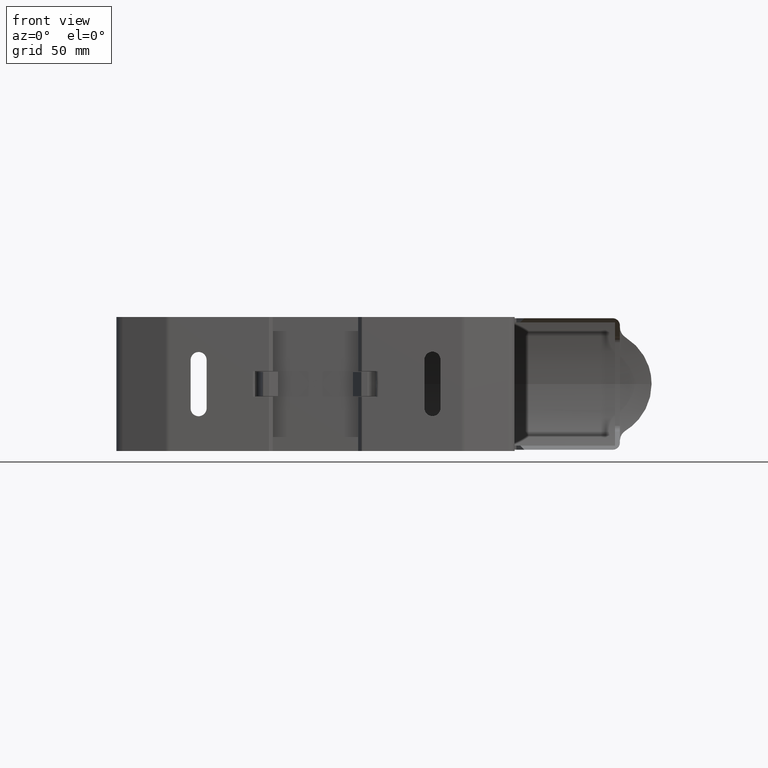
[diagram: clean part render]
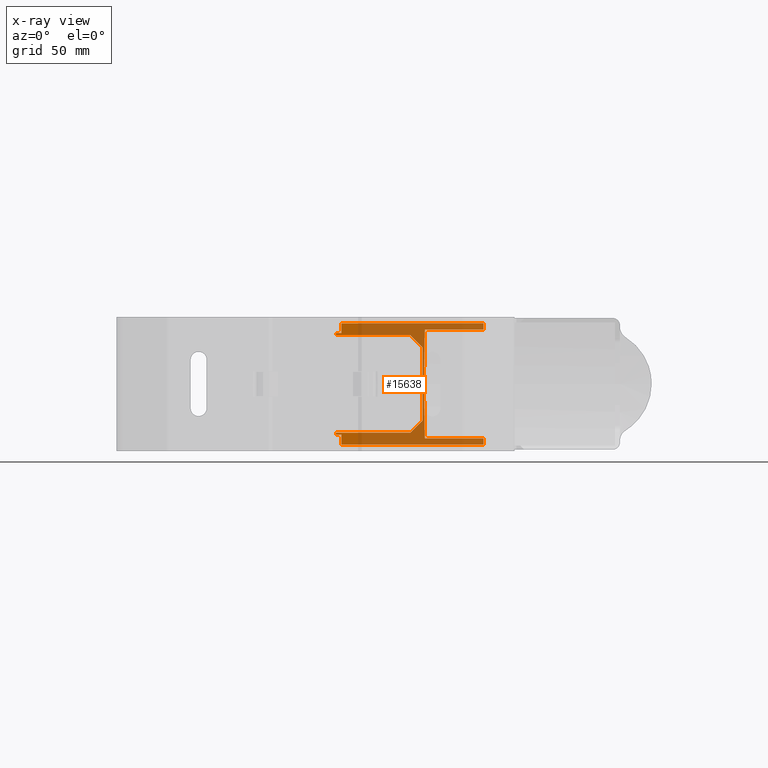
[diagram: x-ray — body ghosted, one internal face saturated and labeled with its STEP entity id]
A machine part, front view, then the same camera in x-ray: the body is ghosted and one INTERNAL B-rep face — a face not visible from any outside direction — is saturated and labeled: STEP entity #15638.
In plain terms, the highlighted planar face has unit normal (0, 1, -0).
Its self-contained STEP definition (entity closure, byte-faithful):
#325 = DIRECTION ( 'NONE',  ( -1.000000000000000000, -0.0000000000000000000, -6.982962677686269900E-015 ) ) ;
#334 = LINE ( 'NONE', #384, #18917 ) ;
#384 = CARTESIAN_POINT ( 'NONE',  ( 325.5178421804040500, -232.3717408838470500, 26.39999999999704600 ) ) ;
#1052 = DIRECTION ( 'NONE',  ( 1.000000000000000000, -6.346126799884186200E-052, 4.867835802386790800E-030 ) ) ;
#1060 = LINE ( 'NONE', #1065, #18996 ) ;
#1065 = CARTESIAN_POINT ( 'NONE',  ( 325.5178421804045000, -232.3717400195588400, -18.40000000000411600 ) ) ;
#2367 = VERTEX_POINT ( 'NONE', #39016 ) ;
#2411 = VERTEX_POINT ( 'NONE', #39104 ) ;
#2419 = VERTEX_POINT ( 'NONE', #39117 ) ;
#2428 = VERTEX_POINT ( 'NONE', #39124 ) ;
#2457 = VERTEX_POINT ( 'NONE', #39157 ) ;
#2459 = VERTEX_POINT ( 'NONE', #39148 ) ;
#2468 = VERTEX_POINT ( 'NONE', #39177 ) ;
#2502 = VERTEX_POINT ( 'NONE', #39188 ) ;
#2506 = VERTEX_POINT ( 'NONE', #39145 ) ;
#2519 = VERTEX_POINT ( 'NONE', #39221 ) ;
#2652 = VERTEX_POINT ( 'NONE', #39374 ) ;
#2657 = VERTEX_POINT ( 'NONE', #39377 ) ;
#3765 = VECTOR ( 'NONE', #27741, 1000.000000000000000 ) ;
#3769 = VECTOR ( 'NONE', #27762, 1000.000000000000000 ) ;
#3796 = VECTOR ( 'NONE', #27787, 1000.000000000000000 ) ;
#3797 = VECTOR ( 'NONE', #27877, 1000.000000000000000 ) ;
#3799 = VECTOR ( 'NONE', #27922, 1000.000000000000100 ) ;
#3812 = VECTOR ( 'NONE', #27897, 1000.000000000000000 ) ;
#3822 = VECTOR ( 'NONE', #27901, 1000.000000000000100 ) ;
#3876 = VECTOR ( 'NONE', #28235, 1000.000000000000000 ) ;
#3889 = VECTOR ( 'NONE', #28430, 1000.000000000000000 ) ;
#3938 = VECTOR ( 'NONE', #28909, 1000.000000000000000 ) ;
#4035 = VECTOR ( 'NONE', #16668, 1000.000000000000000 ) ;
#4036 = VECTOR ( 'NONE', #16686, 1000.000000000000000 ) ;
#4037 = VECTOR ( 'NONE', #16687, 1000.000000000000000 ) ;
#9159 = DIRECTION ( 'NONE',  ( 0.0000000000000000000, 0.0000000000000000000, -1.000000000000000000 ) ) ;
#9187 = LINE ( 'NONE', #9191, #18729 ) ;
#9191 = CARTESIAN_POINT ( 'NONE',  ( 448.1622404331139900, -232.3717386567129200, 31.49999999999469900 ) ) ;
#9455 = DIRECTION ( 'NONE',  ( 0.0000000000000000000, 0.0000000000000000000, -1.000000000000000000 ) ) ;
#9495 = LINE ( 'NONE', #9496, #18797 ) ;
#9496 = CARTESIAN_POINT ( 'NONE',  ( 448.1622404331139900, -232.3717386565380100, 31.49999999999469900 ) ) ;
#15638 = ADVANCED_FACE ( 'NONE', ( #26578 ), #26505, .T. ) ;
#16664 = LINE ( 'NONE', #16676, #4035 ) ;
#16667 = LINE ( 'NONE', #16691, #4036 ) ;
#16668 = DIRECTION ( 'NONE',  ( -1.000000000000000000, 0.0000000000000000000, -0.0000000000000000000 ) ) ;
#16673 = LINE ( 'NONE', #16685, #4037 ) ;
#16676 = CARTESIAN_POINT ( 'NONE',  ( 443.4384727774964900, -232.3717404900039900, -20.90000000000409800 ) ) ;
#16685 = CARTESIAN_POINT ( 'NONE',  ( 508.7734352921190700, -232.3717402695985200, -20.90000000000409800 ) ) ;
#16686 = DIRECTION ( 'NONE',  ( 0.0000000000000000000, 0.0000000000000000000, -1.000000000000000000 ) ) ;
#16687 = DIRECTION ( 'NONE',  ( -0.0000000000000000000, -0.0000000000000000000, -1.000000000000000000 ) ) ;
#16691 = CARTESIAN_POINT ( 'NONE',  ( 450.4384727774959700, -232.3717387352347100, -23.40000000000410200 ) ) ;
#17538 = DIRECTION ( 'NONE',  ( -0.01745241021232805300, 6.516566015886044500E-010, -0.9998476950904975300 ) ) ;
#17544 = CARTESIAN_POINT ( 'NONE',  ( 484.6661493193392400, -232.3717400195588400, 26.39999999999821500 ) ) ;
#17551 = LINE ( 'NONE', #17544, #18886 ) ;
#17635 = LINE ( 'NONE', #17667, #18898 ) ;
#17636 = DIRECTION ( 'NONE',  ( 0.01745239813191256200, -6.516557381254405500E-010, -0.9998476953013619700 ) ) ;
#17667 = CARTESIAN_POINT ( 'NONE',  ( 484.2751552960917300, -232.3717400049594900, 3.999972257006428200 ) ) ;
#18191 = ORIENTED_EDGE ( 'NONE', *, *, #34256, .T. ) ;
#18196 = ORIENTED_EDGE ( 'NONE', *, *, #33569, .T. ) ;
#18201 = ORIENTED_EDGE ( 'NONE', *, *, #33044, .T. ) ;
#18207 = ORIENTED_EDGE ( 'NONE', *, *, #33018, .T. ) ;
#18211 = ORIENTED_EDGE ( 'NONE', *, *, #32932, .T. ) ;
#18223 = ORIENTED_EDGE ( 'NONE', *, *, #36229, .F. ) ;
#18228 = ORIENTED_EDGE ( 'NONE', *, *, #34067, .T. ) ;
#18229 = ORIENTED_EDGE ( 'NONE', *, *, #33545, .F. ) ;
#18242 = ORIENTED_EDGE ( 'NONE', *, *, #32972, .T. ) ;
#18252 = ORIENTED_EDGE ( 'NONE', *, *, #34015, .T. ) ;
#18253 = ORIENTED_EDGE ( 'NONE', *, *, #33385, .T. ) ;
#18256 = ORIENTED_EDGE ( 'NONE', *, *, #33208, .T. ) ;
#18260 = ORIENTED_EDGE ( 'NONE', *, *, #33014, .T. ) ;
#18265 = ORIENTED_EDGE ( 'NONE', *, *, #34113, .T. ) ;
#18268 = ORIENTED_EDGE ( 'NONE', *, *, #33016, .T. ) ;
#18284 = ORIENTED_EDGE ( 'NONE', *, *, #33556, .T. ) ;
#18294 = ORIENTED_EDGE ( 'NONE', *, *, #36409, .F. ) ;
#18300 = ORIENTED_EDGE ( 'NONE', *, *, #33188, .T. ) ;
#18313 = ORIENTED_EDGE ( 'NONE', *, *, #32960, .T. ) ;
#18729 = VECTOR ( 'NONE', #9159, 1000.000000000000000 ) ;
#18797 = VECTOR ( 'NONE', #9455, 1000.000000000000000 ) ;
#18886 = VECTOR ( 'NONE', #17538, 1000.000000000000200 ) ;
#18898 = VECTOR ( 'NONE', #17636, 1000.000000000000100 ) ;
#18917 = VECTOR ( 'NONE', #325, 1000.000000000000000 ) ;
#18996 = VECTOR ( 'NONE', #1052, 1000.000000000000000 ) ;
#19781 = VERTEX_POINT ( 'NONE', #43981 ) ;
#19783 = VERTEX_POINT ( 'NONE', #43952 ) ;
#19798 = VERTEX_POINT ( 'NONE', #44001 ) ;
#20449 = EDGE_LOOP ( 'NONE', ( #18252, #18228, #18191, #18284, #18196, #18229, #18268, #18294, #18242, #18260, #18211, #18201, #18207, #18223, #18313, #18300, #18256, #18253, #18265 ) ) ;
#21000 = VERTEX_POINT ( 'NONE', #29894 ) ;
#21074 = VERTEX_POINT ( 'NONE', #30042 ) ;
#21122 = VERTEX_POINT ( 'NONE', #30094 ) ;
#21157 = VERTEX_POINT ( 'NONE', #30058 ) ;
#23868 = AXIS2_PLACEMENT_3D ( 'NONE', #26571, #26572, #26565 ) ;
#26505 = PLANE ( 'NONE',  #23868 ) ;
#26565 = DIRECTION ( 'NONE',  ( -0.9999999999999993300, 3.733903577458722700E-008, 0.0000000000000000000 ) ) ;
#26571 = CARTESIAN_POINT ( 'NONE',  ( 325.5178421804045000, -232.3717340771145000, 3.999999999997155200 ) ) ;
#26572 = DIRECTION ( 'NONE',  ( 3.733903577458722700E-008, 0.9999999999999993300, -2.316105715148476600E-023 ) ) ;
#26578 = FACE_OUTER_BOUND ( 'NONE', #20449, .T. ) ;
#27684 = CARTESIAN_POINT ( 'NONE',  ( 483.7734615204413400, -232.3717399862267400, 3.999999999997155200 ) ) ;
#27740 = LINE ( 'NONE', #27684, #3765 ) ;
#27741 = DIRECTION ( 'NONE',  ( 8.648115415565488900E-031, 2.316105715148474800E-023, 1.000000000000000000 ) ) ;
#27750 = CARTESIAN_POINT ( 'NONE',  ( 325.5178421804045000, -232.3717340771145000, 24.89999999999788100 ) ) ;
#27762 = DIRECTION ( 'NONE',  ( 0.9999999999999993300, -3.733903577458722700E-008, -0.0000000000000000000 ) ) ;
#27763 = LINE ( 'NONE', #27768, #3796 ) ;
#27767 = LINE ( 'NONE', #27750, #3769 ) ;
#27768 = CARTESIAN_POINT ( 'NONE',  ( 325.5178421804045000, -232.3717340771145000, -16.00000000000420600 ) ) ;
#27787 = DIRECTION ( 'NONE',  ( 0.9999999999999993300, -3.733903577458722700E-008, -0.0000000000000000000 ) ) ;
#27846 = LINE ( 'NONE', #27859, #3812 ) ;
#27850 = LINE ( 'NONE', #27898, #3822 ) ;
#27859 = CARTESIAN_POINT ( 'NONE',  ( 325.5178421804045000, -232.3717340771145000, -16.90000000000410200 ) ) ;
#27877 = DIRECTION ( 'NONE',  ( -0.9999999999999993300, 3.733903577458722700E-008, 0.0000000000000000000 ) ) ;
#27889 = LINE ( 'NONE', #27895, #3799 ) ;
#27890 = CARTESIAN_POINT ( 'NONE',  ( 325.5178421804045000, -232.3717340771145000, 23.99999999999579700 ) ) ;
#27895 = CARTESIAN_POINT ( 'NONE',  ( 483.7734615204413400, -232.3717399862267400, 18.99999999999580100 ) ) ;
#27897 = DIRECTION ( 'NONE',  ( -0.9999999999999993300, 3.733903577458722700E-008, 0.0000000000000000000 ) ) ;
#27898 = CARTESIAN_POINT ( 'NONE',  ( 478.7734615204411700, -232.3717397995315500, -16.00000000000420600 ) ) ;
#27901 = DIRECTION ( 'NONE',  ( 0.7071067811865595600, -2.640268656091934300E-008, 0.7071067811865349200 ) ) ;
#27907 = LINE ( 'NONE', #27890, #3797 ) ;
#27922 = DIRECTION ( 'NONE',  ( -0.7071067811865557900, 2.640268656091950200E-008, 0.7071067811865386900 ) ) ;
#28235 = DIRECTION ( 'NONE',  ( 8.648115415565488900E-031, 2.316105715148474800E-023, 1.000000000000000000 ) ) ;
#28274 = CARTESIAN_POINT ( 'NONE',  ( 450.4384739006929400, -232.3717387415304400, 3.999999999997155200 ) ) ;
#28303 = LINE ( 'NONE', #28274, #3876 ) ;
#28326 = LINE ( 'NONE', #28367, #3889 ) ;
#28367 = CARTESIAN_POINT ( 'NONE',  ( 325.5178421804045000, -232.3717340771145000, 28.89999999999790200 ) ) ;
#28430 = DIRECTION ( 'NONE',  ( 0.9999999999999993300, -3.733903577458722700E-008, -0.0000000000000000000 ) ) ;
#28870 = LINE ( 'NONE', #28929, #3938 ) ;
#28909 = DIRECTION ( 'NONE',  ( -8.648115415565488900E-031, -2.316105715148474800E-023, -1.000000000000000000 ) ) ;
#28929 = CARTESIAN_POINT ( 'NONE',  ( 508.7734364153145600, -232.3717409197016900, 3.999999999997155200 ) ) ;
#29894 = CARTESIAN_POINT ( 'NONE',  ( 448.1622404331139900, -232.3717386565963600, 24.89999999999788100 ) ) ;
#30042 = CARTESIAN_POINT ( 'NONE',  ( 448.1622404331139900, -232.3717386565380400, -16.90000000000410200 ) ) ;
#30058 = CARTESIAN_POINT ( 'NONE',  ( 448.1622404331139900, -232.3717386567129200, 23.99999999999580100 ) ) ;
#30094 = CARTESIAN_POINT ( 'NONE',  ( 448.1622404331139900, -232.3717386565380100, -16.00000000000420600 ) ) ;
#32932 = EDGE_CURVE ( 'NONE', #2419, #2468, #27740, .T. ) ;
#32960 = EDGE_CURVE ( 'NONE', #21000, #2457, #27767, .T. ) ;
#32972 = EDGE_CURVE ( 'NONE', #21122, #2459, #27763, .T. ) ;
#33014 = EDGE_CURVE ( 'NONE', #2459, #2419, #27850, .T. ) ;
#33016 = EDGE_CURVE ( 'NONE', #2428, #21074, #27846, .T. ) ;
#33018 = EDGE_CURVE ( 'NONE', #2367, #21157, #27907, .T. ) ;
#33044 = EDGE_CURVE ( 'NONE', #2468, #2367, #27889, .T. ) ;
#33188 = EDGE_CURVE ( 'NONE', #2457, #2411, #28303, .T. ) ;
#33208 = EDGE_CURVE ( 'NONE', #2411, #2502, #28326, .T. ) ;
#33385 = EDGE_CURVE ( 'NONE', #2502, #2657, #28870, .T. ) ;
#33545 = EDGE_CURVE ( 'NONE', #2428, #2519, #16667, .T. ) ;
#33556 = EDGE_CURVE ( 'NONE', #2652, #2506, #16673, .T. ) ;
#33569 = EDGE_CURVE ( 'NONE', #2506, #2519, #16664, .T. ) ;
#34015 = EDGE_CURVE ( 'NONE', #19783, #19798, #17551, .T. ) ;
#34067 = EDGE_CURVE ( 'NONE', #19798, #19781, #17635, .T. ) ;
#34113 = EDGE_CURVE ( 'NONE', #2657, #19783, #334, .T. ) ;
#34256 = EDGE_CURVE ( 'NONE', #19781, #2652, #1060, .T. ) ;
#36229 = EDGE_CURVE ( 'NONE', #21000, #21157, #9187, .T. ) ;
#36409 = EDGE_CURVE ( 'NONE', #21122, #21074, #9495, .T. ) ;
#39016 = CARTESIAN_POINT ( 'NONE',  ( 478.7734615204411700, -232.3717396732114400, 23.99999999999580100 ) ) ;
#39104 = CARTESIAN_POINT ( 'NONE',  ( 450.4384743464758000, -232.3717387448918100, 28.89999999999790200 ) ) ;
#39117 = CARTESIAN_POINT ( 'NONE',  ( 483.7734615204413400, -232.3717393550396900, -11.00000000000419600 ) ) ;
#39124 = CARTESIAN_POINT ( 'NONE',  ( 450.4384727774959700, -232.3717387373332600, -16.90000000000410200 ) ) ;
#39145 = CARTESIAN_POINT ( 'NONE',  ( 508.7734352921190700, -232.3717404165354900, -20.90000000000409800 ) ) ;
#39148 = CARTESIAN_POINT ( 'NONE',  ( 478.7734615204411700, -232.3717390375880700, -16.00000000000420600 ) ) ;
#39157 = CARTESIAN_POINT ( 'NONE',  ( 450.4384739006930000, -232.3717387415304100, 24.89999999999788100 ) ) ;
#39177 = CARTESIAN_POINT ( 'NONE',  ( 483.7734615204413400, -232.3717395735701500, 18.99999999999579700 ) ) ;
#39188 = CARTESIAN_POINT ( 'NONE',  ( 508.7734364153145600, -232.3717409068164300, 28.89999999999803400 ) ) ;
#39221 = CARTESIAN_POINT ( 'NONE',  ( 450.4384727774960900, -232.3717399050808600, -20.90000000000409800 ) ) ;
#39374 = CARTESIAN_POINT ( 'NONE',  ( 508.7734352921190700, -232.3717401445786700, -18.40000000000411600 ) ) ;
#39377 = CARTESIAN_POINT ( 'NONE',  ( 508.7734373114747100, -232.3717408957986100, 26.39999999999832900 ) ) ;
#43952 = CARTESIAN_POINT ( 'NONE',  ( 484.6661493193392400, -232.3717405957509600, 26.39999999999821500 ) ) ;
#43981 = CARTESIAN_POINT ( 'NONE',  ( 484.6661480781744400, -232.3717400195588400, -18.39999999998729100 ) ) ;
#44001 = CARTESIAN_POINT ( 'NONE',  ( 484.2751552914010100, -232.3717400049594900, 3.999972256922701900 ) ) ;